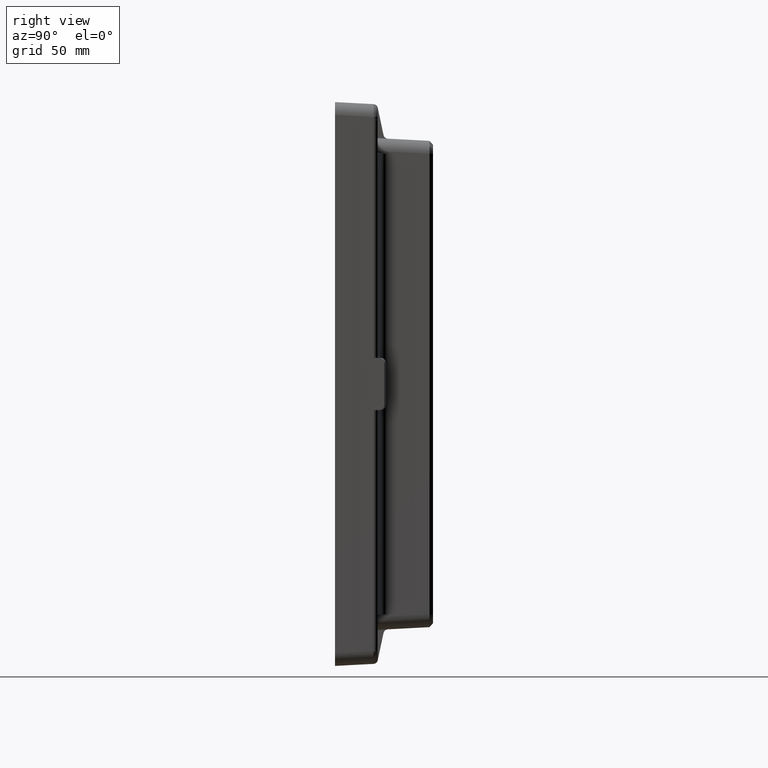
[diagram: clean part render]
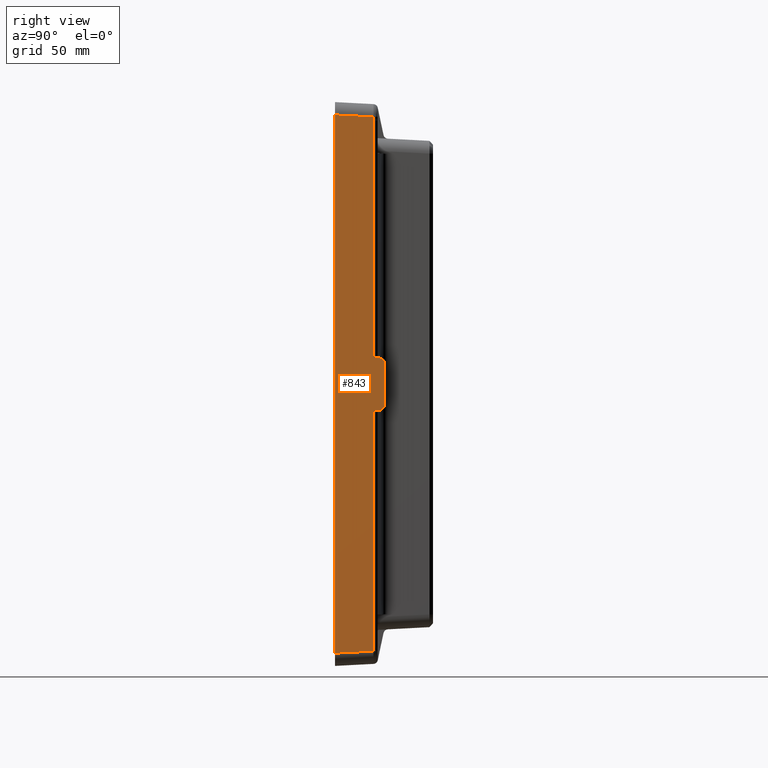
[diagram: same view with one face highlighted and labeled with its STEP entity id]
A machine part, right view. The second image highlights one B-rep face of the part: STEP entity #843.
In plain terms, the highlighted planar face has unit normal (0.9986, 0.0523, -0).
Its self-contained STEP definition (entity closure, byte-faithful):
#131 = LINE ( 'NONE', #8070, #4193 ) ;
#164 = VECTOR ( 'NONE', #3712, 1000.000000000000200 ) ;
#251 =( BOUNDED_CURVE ( )  B_SPLINE_CURVE ( 3, ( #4617, #8491, #6553, #7800 ),
 .UNSPECIFIED., .F., .T. ) 
 B_SPLINE_CURVE_WITH_KNOTS ( ( 4, 4 ),
 ( 1.623156204354726300, 3.141592653589793100 ),
 .UNSPECIFIED. ) 
 CURVE ( )  GEOMETRIC_REPRESENTATION_ITEM ( )  RATIONAL_B_SPLINE_CURVE ( ( 1.000000000000000000, 0.8169162473415250100, 0.8169162473415250100, 1.000000000000000000 ) ) 
 REPRESENTATION_ITEM ( '' )  );
#305 = VECTOR ( 'NONE', #1559, 1000.000000000000000 ) ;
#356 = EDGE_CURVE ( 'NONE', #816, #1514, #251, .T. ) ;
#365 = VERTEX_POINT ( 'NONE', #7878 ) ;
#401 = VERTEX_POINT ( 'NONE', #1871 ) ;
#565 = ORIENTED_EDGE ( 'NONE', *, *, #1387, .T. ) ;
#576 = CARTESIAN_POINT ( 'NONE',  ( 93.35527839939653900, 12.30202098664715900, 11.09053044458459200 ) ) ;
#621 = EDGE_CURVE ( 'NONE', #3736, #3674, #6323, .T. ) ;
#622 = CARTESIAN_POINT ( 'NONE',  ( 93.55623979050348300, 8.467449213979881200, -112.9651442959591800 ) ) ;
#711 = LINE ( 'NONE', #3489, #922 ) ;
#789 = VECTOR ( 'NONE', #3102, 1000.000000000000000 ) ;
#791 = ORIENTED_EDGE ( 'NONE', *, *, #7396, .F. ) ;
#816 = VERTEX_POINT ( 'NONE', #3638 ) ;
#843 = ADVANCED_FACE ( 'NONE', ( #4328 ), #7563, .T. ) ;
#893 = CARTESIAN_POINT ( 'NONE',  ( 93.31337570053776200, 13.10157211115623700, 11.05000000000000100 ) ) ;
#922 = VECTOR ( 'NONE', #4211, 1000.000000000000000 ) ;
#1139 = DIRECTION ( 'NONE',  ( 0.05226442768871402500, -0.9972646886342372300, 0.05226442768871403900 ) ) ;
#1205 = CARTESIAN_POINT ( 'NONE',  ( 93.55623979050348300, 8.467449213979881200, 112.9651442959591900 ) ) ;
#1253 = EDGE_CURVE ( 'NONE', #401, #3321, #4419, .T. ) ;
#1386 = ORIENTED_EDGE ( 'NONE', *, *, #6703, .T. ) ;
#1387 = EDGE_CURVE ( 'NONE', #3005, #365, #4889, .T. ) ;
#1396 = CARTESIAN_POINT ( 'NONE',  ( 93.55767480160118100, 8.440067571076296500, -114.5652123604509300 ) ) ;
#1514 = VERTEX_POINT ( 'NONE', #6699 ) ;
#1559 = DIRECTION ( 'NONE',  ( -0.0000000000000000000, -0.0000000000000000000, -1.000000000000000000 ) ) ;
#1680 = VERTEX_POINT ( 'NONE', #3554 ) ;
#1750 = CARTESIAN_POINT ( 'NONE',  ( 94.01500304783640200, -0.2862752064970360800, 115.0225406066861400 ) ) ;
#1871 = CARTESIAN_POINT ( 'NONE',  ( 93.55767480160118100, 8.440067571076301800, 114.5652123604509100 ) ) ;
#1939 = LINE ( 'NONE', #3092, #164 ) ;
#1943 = ORIENTED_EDGE ( 'NONE', *, *, #621, .T. ) ;
#1971 = CARTESIAN_POINT ( 'NONE',  ( 93.31337570053780400, 13.10157211115623500, 10.27557171982393000 ) ) ;
#2072 = LINE ( 'NONE', #4736, #7147 ) ;
#2166 = ORIENTED_EDGE ( 'NONE', *, *, #7584, .T. ) ;
#2178 = LINE ( 'NONE', #893, #305 ) ;
#2291 = CARTESIAN_POINT ( 'NONE',  ( 94.00000000000009900, 0.0000000000000000000, 120.5000000000000000 ) ) ;
#2478 = CARTESIAN_POINT ( 'NONE',  ( 93.55767480160118100, 8.440067571076301800, 114.5652123604509100 ) ) ;
#2553 = LINE ( 'NONE', #5081, #789 ) ;
#2613 = CARTESIAN_POINT ( 'NONE',  ( 94.41926223426443700, -7.999999999999996400, 115.4267997931141700 ) ) ;
#2796 = EDGE_CURVE ( 'NONE', #3674, #8556, #2553, .T. ) ;
#2949 = VERTEX_POINT ( 'NONE', #1205 ) ;
#3005 = VERTEX_POINT ( 'NONE', #3329 ) ;
#3014 = DIRECTION ( 'NONE',  ( -0.0000000000000000000, -0.0000000000000000000, 1.000000000000000000 ) ) ;
#3092 = CARTESIAN_POINT ( 'NONE',  ( 93.35669458104385400, 12.27499863106028500, -114.3642321398936000 ) ) ;
#3102 = DIRECTION ( 'NONE',  ( -0.0000000000000000000, -0.0000000000000000000, 1.000000000000000000 ) ) ;
#3191 = ORIENTED_EDGE ( 'NONE', *, *, #4701, .T. ) ;
#3321 = VERTEX_POINT ( 'NONE', #2613 ) ;
#3329 = CARTESIAN_POINT ( 'NONE',  ( 93.31337570053776200, 13.10157211115623700, 9.152070866570241500 ) ) ;
#3489 = CARTESIAN_POINT ( 'NONE',  ( 93.55623979050348300, 8.467449213979881200, 114.4662624004990200 ) ) ;
#3505 = ORIENTED_EDGE ( 'NONE', *, *, #1253, .T. ) ;
#3554 = CARTESIAN_POINT ( 'NONE',  ( 93.55623979050348300, 8.467449213979881200, 11.28491063363524700 ) ) ;
#3638 = CARTESIAN_POINT ( 'NONE',  ( 93.41606868705336800, 11.14207319858128100, -11.14932993607938800 ) ) ;
#3674 = VERTEX_POINT ( 'NONE', #7380 ) ;
#3712 = DIRECTION ( 'NONE',  ( -0.05226442768871402500, 0.9972646886342372300, 0.05226442768871403900 ) ) ;
#3736 = VERTEX_POINT ( 'NONE', #8324 ) ;
#3872 = CARTESIAN_POINT ( 'NONE',  ( 93.55623979050348300, 8.467449213979881200, -11.28491063363524700 ) ) ;
#3967 = EDGE_CURVE ( 'NONE', #5842, #3321, #5888, .T. ) ;
#4193 = VECTOR ( 'NONE', #8186, 1000.000000000000100 ) ;
#4211 = DIRECTION ( 'NONE',  ( -0.0000000000000000000, -0.0000000000000000000, 1.000000000000000000 ) ) ;
#4328 = FACE_OUTER_BOUND ( 'NONE', #7960, .T. ) ;
#4419 = LINE ( 'NONE', #1750, #5653 ) ;
#4574 = CARTESIAN_POINT ( 'NONE',  ( 93.31337570053776200, 13.10157211115623700, 9.152070866570241500 ) ) ;
#4617 = CARTESIAN_POINT ( 'NONE',  ( 93.41606868705336800, 11.14207319858128100, -11.14932993607938800 ) ) ;
#4657 = AXIS2_PLACEMENT_3D ( 'NONE', #2291, #6334, #6858 ) ;
#4693 = CARTESIAN_POINT ( 'NONE',  ( 93.55623979050349700, 8.467449213979884700, -113.4964257797895900 ) ) ;
#4701 = EDGE_CURVE ( 'NONE', #8556, #816, #131, .T. ) ;
#4736 = CARTESIAN_POINT ( 'NONE',  ( 93.31337570053777600, 13.10157211115623700, 11.05000000000000100 ) ) ;
#4889 =( BOUNDED_CURVE ( )  B_SPLINE_CURVE ( 3, ( #4574, #1971, #576, #8471 ),
 .UNSPECIFIED., .F., .T. ) 
 B_SPLINE_CURVE_WITH_KNOTS ( ( 4, 4 ),
 ( 3.141592653589793100, 4.660029102824859500 ),
 .UNSPECIFIED. ) 
 CURVE ( )  GEOMETRIC_REPRESENTATION_ITEM ( )  RATIONAL_B_SPLINE_CURVE ( ( 1.000000000000000000, 0.8169162473415251300, 0.8169162473415251300, 1.000000000000000000 ) ) 
 REPRESENTATION_ITEM ( '' )  );
#5004 = ORIENTED_EDGE ( 'NONE', *, *, #356, .T. ) ;
#5081 = CARTESIAN_POINT ( 'NONE',  ( 93.55623979050348300, 8.467449213979881200, -11.20722333784912500 ) ) ;
#5254 = VECTOR ( 'NONE', #3014, 1000.000000000000000 ) ;
#5293 = CARTESIAN_POINT ( 'NONE',  ( 93.55671821374502900, 8.458320354713365000, -114.0298779261430700 ) ) ;
#5312 = ORIENTED_EDGE ( 'NONE', *, *, #5446, .T. ) ;
#5446 = EDGE_CURVE ( 'NONE', #5842, #3736, #1939, .T. ) ;
#5604 = ORIENTED_EDGE ( 'NONE', *, *, #7658, .F. ) ;
#5653 = VECTOR ( 'NONE', #1139, 1000.000000000000200 ) ;
#5842 = VERTEX_POINT ( 'NONE', #6736 ) ;
#5869 = CARTESIAN_POINT ( 'NONE',  ( 93.55671821374502900, 8.458320354713368500, 114.0298779261430400 ) ) ;
#5888 = LINE ( 'NONE', #7673, #5254 ) ;
#5944 = DIRECTION ( 'NONE',  ( -0.05226902705914252700, 0.9973524498500607700, -0.05055729016049583000 ) ) ;
#5973 =( BOUNDED_CURVE ( )  B_SPLINE_CURVE ( 3, ( #7866, #7757, #5869, #2478 ),
 .UNSPECIFIED., .F., .T. ) 
 B_SPLINE_CURVE_WITH_KNOTS ( ( 4, 4 ),
 ( 4.346454297330240000, 4.392956178690188700 ),
 .UNSPECIFIED. ) 
 CURVE ( )  GEOMETRIC_REPRESENTATION_ITEM ( )  RATIONAL_B_SPLINE_CURVE ( ( 1.000000000000000000, 0.9998198060372166500, 0.9998198060372166500, 1.000000000000000000 ) ) 
 REPRESENTATION_ITEM ( '' )  );
#6323 =( BOUNDED_CURVE ( )  B_SPLINE_CURVE ( 3, ( #1396, #5293, #4693, #622 ),
 .UNSPECIFIED., .F., .T. ) 
 B_SPLINE_CURVE_WITH_KNOTS ( ( 4, 4 ),
 ( 1.890229128489396600, 1.936731009849346000 ),
 .UNSPECIFIED. ) 
 CURVE ( )  GEOMETRIC_REPRESENTATION_ITEM ( )  RATIONAL_B_SPLINE_CURVE ( ( 1.000000000000000000, 0.9998198060372166500, 0.9998198060372166500, 1.000000000000000000 ) ) 
 REPRESENTATION_ITEM ( '' )  );
#6334 = DIRECTION ( 'NONE',  ( 0.9986295347545739400, 0.05233595624294395300, -0.0000000000000000000 ) ) ;
#6553 = CARTESIAN_POINT ( 'NONE',  ( 93.31337570053780400, 13.10157211115623500, -10.27557171982392600 ) ) ;
#6699 = CARTESIAN_POINT ( 'NONE',  ( 93.31337570053776200, 13.10157211115623700, -9.152070866570237900 ) ) ;
#6703 = EDGE_CURVE ( 'NONE', #2949, #401, #5973, .T. ) ;
#6736 = CARTESIAN_POINT ( 'NONE',  ( 94.41926223426443700, -7.999999999999996400, -115.4267997931141000 ) ) ;
#6858 = DIRECTION ( 'NONE',  ( -0.05233595624294395300, 0.9986295347545739400, 0.0000000000000000000 ) ) ;
#7147 = VECTOR ( 'NONE', #5944, 1000.000000000000100 ) ;
#7380 = CARTESIAN_POINT ( 'NONE',  ( 93.55623979050348300, 8.467449213979881200, -112.9651442959591800 ) ) ;
#7396 = EDGE_CURVE ( 'NONE', #1680, #365, #2072, .T. ) ;
#7436 = ORIENTED_EDGE ( 'NONE', *, *, #3967, .F. ) ;
#7563 = PLANE ( 'NONE',  #4657 ) ;
#7584 = EDGE_CURVE ( 'NONE', #1680, #2949, #711, .T. ) ;
#7658 = EDGE_CURVE ( 'NONE', #3005, #1514, #2178, .T. ) ;
#7673 = CARTESIAN_POINT ( 'NONE',  ( 94.41926223426443700, -7.999999999999996400, 120.5000000000000000 ) ) ;
#7757 = CARTESIAN_POINT ( 'NONE',  ( 93.55623979050349700, 8.467449213979888300, 113.4964257797895800 ) ) ;
#7800 = CARTESIAN_POINT ( 'NONE',  ( 93.31337570053776200, 13.10157211115623700, -9.152070866570237900 ) ) ;
#7825 = ORIENTED_EDGE ( 'NONE', *, *, #2796, .T. ) ;
#7866 = CARTESIAN_POINT ( 'NONE',  ( 93.55623979050348300, 8.467449213979881200, 112.9651442959591900 ) ) ;
#7878 = CARTESIAN_POINT ( 'NONE',  ( 93.41606868705336800, 11.14207319858128100, 11.14932993607938800 ) ) ;
#7960 = EDGE_LOOP ( 'NONE', ( #7825, #3191, #5004, #5604, #565, #791, #2166, #1386, #3505, #7436, #5312, #1943 ) ) ;
#8070 = CARTESIAN_POINT ( 'NONE',  ( 93.31337570053777600, 13.10157211115623700, -11.05000000000000100 ) ) ;
#8186 = DIRECTION ( 'NONE',  ( -0.05226902705914252700, 0.9973524498500607700, 0.05055729016049583000 ) ) ;
#8324 = CARTESIAN_POINT ( 'NONE',  ( 93.55767480160118100, 8.440067571076296500, -114.5652123604509300 ) ) ;
#8471 = CARTESIAN_POINT ( 'NONE',  ( 93.41606868705336800, 11.14207319858128100, 11.14932993607938800 ) ) ;
#8491 = CARTESIAN_POINT ( 'NONE',  ( 93.35527839939658200, 12.30202098664715900, -11.09053044458459200 ) ) ;
#8556 = VERTEX_POINT ( 'NONE', #3872 ) ;